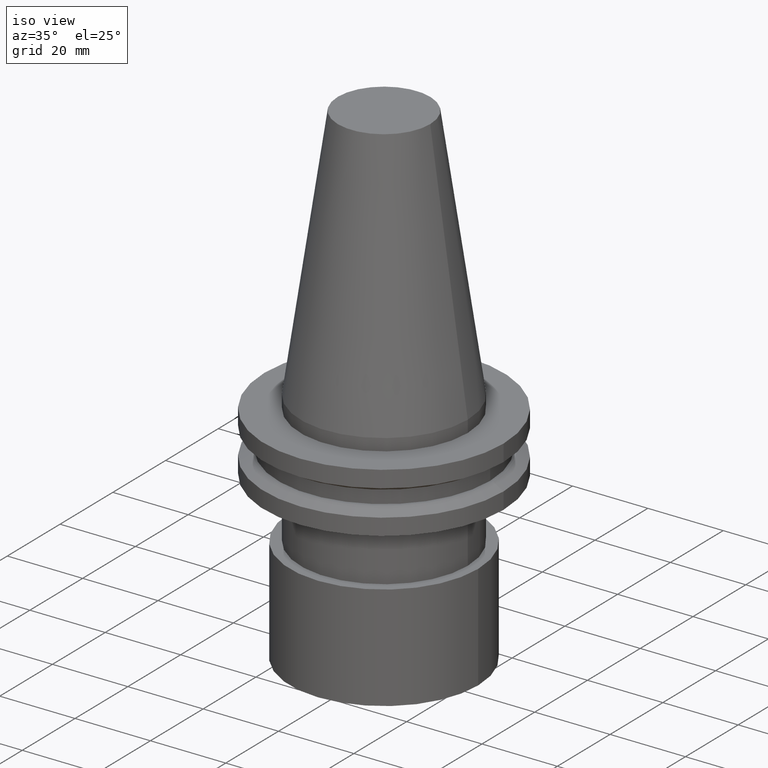
[diagram: clean part render]
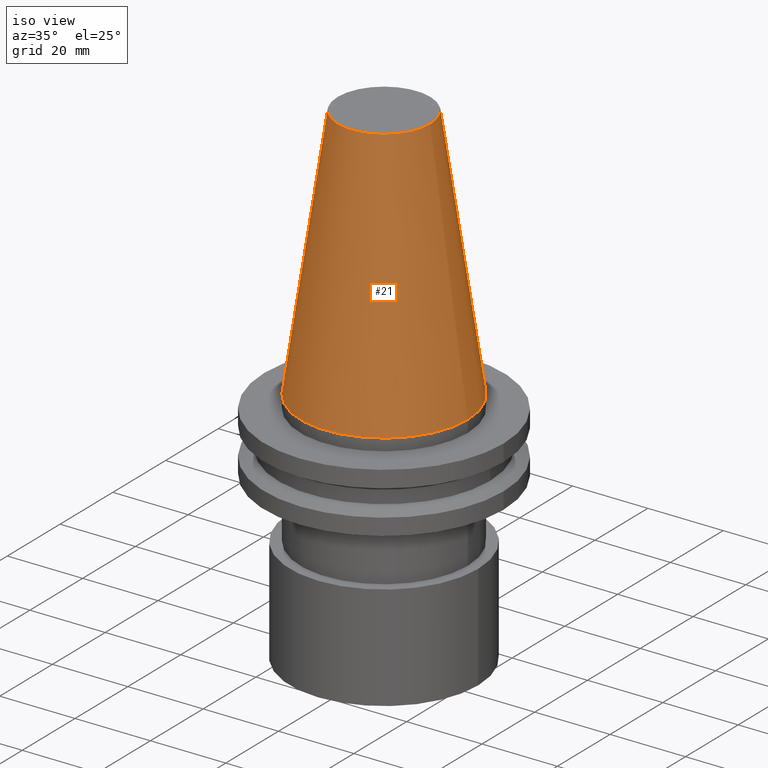
[diagram: same view with one face highlighted and labeled with its STEP entity id]
A machine part, iso view. The second image highlights one B-rep face of the part: STEP entity #21.
In plain terms, the highlighted conical surface has half-angle 8.297 deg.
Its self-contained STEP definition (entity closure, byte-faithful):
#2 = VERTEX_POINT ( 'NONE', #281 ) ;
#9 = CARTESIAN_POINT ( 'NONE',  ( 0.000000000000000000, 0.000000000000000000, 0.000000000000000000 ) ) ;
#21 = ADVANCED_FACE ( 'NONE', ( #32, #186 ), #218, .T. ) ;
#29 = AXIS2_PLACEMENT_3D ( 'NONE', #146, #120, #324 ) ;
#32 = FACE_BOUND ( 'NONE', #65, .T. ) ;
#54 = DIRECTION ( 'NONE',  ( 1.000000000000000000, 0.000000000000000000, 0.000000000000000000 ) ) ;
#65 = EDGE_LOOP ( 'NONE', ( #246 ) ) ;
#83 = EDGE_CURVE ( 'NONE', #2, #2, #318, .T. ) ;
#112 = CARTESIAN_POINT ( 'NONE',  ( 0.000000000000000000, 0.000000000000000000, 68.25000000000000000 ) ) ;
#116 = ORIENTED_EDGE ( 'NONE', *, *, #83, .T. ) ;
#120 = DIRECTION ( 'NONE',  ( 0.000000000000000000, 0.000000000000000000, -1.000000000000000000 ) ) ;
#146 = CARTESIAN_POINT ( 'NONE',  ( 0.000000000000000000, 0.000000000000000000, 0.000000000000000000 ) ) ;
#157 = AXIS2_PLACEMENT_3D ( 'NONE', #112, #235, #54 ) ;
#186 = FACE_OUTER_BOUND ( 'NONE', #317, .T. ) ;
#218 = CONICAL_SURFACE ( 'NONE', #29, 22.22500000000000142, 0.1448138465474119174 ) ;
#234 = VERTEX_POINT ( 'NONE', #351 ) ;
#235 = DIRECTION ( 'NONE',  ( -0.000000000000000000, -0.000000000000000000, 1.000000000000000000 ) ) ;
#246 = ORIENTED_EDGE ( 'NONE', *, *, #382, .F. ) ;
#249 = AXIS2_PLACEMENT_3D ( 'NONE', #9, #251, #379 ) ;
#251 = DIRECTION ( 'NONE',  ( -0.000000000000000000, -0.000000000000000000, 1.000000000000000000 ) ) ;
#269 = CIRCLE ( 'NONE', #157, 12.27178102086201150 ) ;
#281 = CARTESIAN_POINT ( 'NONE',  ( 22.22500000000000142, 0.000000000000000000, 0.000000000000000000 ) ) ;
#317 = EDGE_LOOP ( 'NONE', ( #116 ) ) ;
#318 = CIRCLE ( 'NONE', #249, 22.22500000000000142 ) ;
#324 = DIRECTION ( 'NONE',  ( -1.000000000000000000, 0.000000000000000000, 0.000000000000000000 ) ) ;
#351 = CARTESIAN_POINT ( 'NONE',  ( 12.27178102086201150, 0.000000000000000000, 68.25000000000000000 ) ) ;
#379 = DIRECTION ( 'NONE',  ( 1.000000000000000000, 0.000000000000000000, 0.000000000000000000 ) ) ;
#382 = EDGE_CURVE ( 'NONE', #234, #234, #269, .T. ) ;